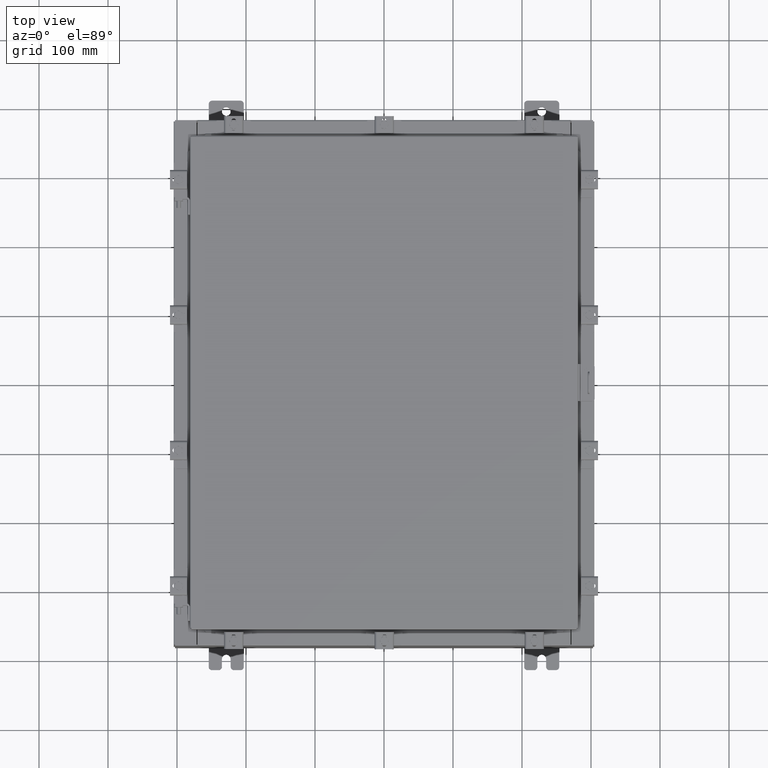
[diagram: clean part render]
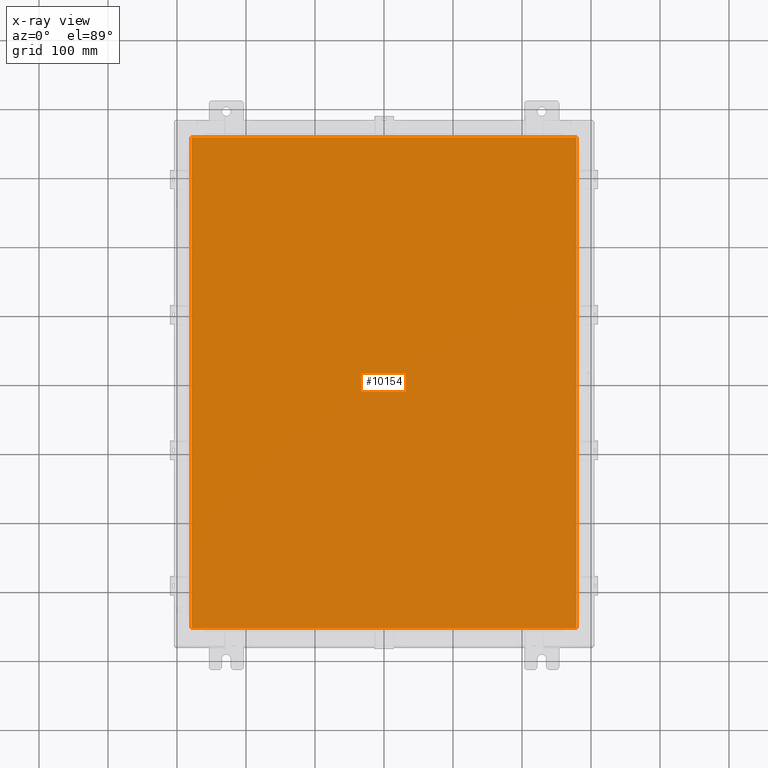
[diagram: x-ray — body ghosted, one internal face saturated and labeled with its STEP entity id]
A machine part, top view, then the same camera in x-ray: the body is ghosted and one INTERNAL B-rep face — a face not visible from any outside direction — is saturated and labeled: STEP entity #10154.
In plain terms, the highlighted planar face has unit normal (0, 0, -1).
Its self-contained STEP definition (entity closure, byte-faithful):
#800 = CARTESIAN_POINT ( 'NONE',  ( -10.99030000000000000, 14.00630000000000100, -0.07470000000000019700 ) ) ;
#907 = VERTEX_POINT ( 'NONE', #15625 ) ;
#2372 = VECTOR ( 'NONE', #11543, 39.37007874015748100 ) ;
#3548 = EDGE_CURVE ( 'NONE', #18880, #907, #15079, .T. ) ;
#3742 = LINE ( 'NONE', #9411, #22220 ) ;
#4670 = CARTESIAN_POINT ( 'NONE',  ( 10.99030000000000000, -14.00629999999999800, -0.07470000000000019700 ) ) ;
#4794 = CARTESIAN_POINT ( 'NONE',  ( -10.99030000000000000, -14.00629999999999600, -0.07470000000000000300 ) ) ;
#5756 = VERTEX_POINT ( 'NONE', #20305 ) ;
#6134 = CARTESIAN_POINT ( 'NONE',  ( 0.0000000000000000000, 0.0000000000000000000, -0.07470000000000000300 ) ) ;
#6164 = LINE ( 'NONE', #4670, #10945 ) ;
#6862 = EDGE_CURVE ( 'NONE', #9668, #5756, #3742, .T. ) ;
#7127 = EDGE_LOOP ( 'NONE', ( #9631, #16444, #20823, #19174 ) ) ;
#8487 = EDGE_CURVE ( 'NONE', #5756, #18880, #16656, .T. ) ;
#9411 = CARTESIAN_POINT ( 'NONE',  ( 10.99030000000000000, 14.00629999999999800, -0.07470000000000019700 ) ) ;
#9631 = ORIENTED_EDGE ( 'NONE', *, *, #11522, .F. ) ;
#9668 = VERTEX_POINT ( 'NONE', #22187 ) ;
#9769 = DIRECTION ( 'NONE',  ( -1.000000000000000000, 0.0000000000000000000, -0.0000000000000000000 ) ) ;
#10154 = ADVANCED_FACE ( 'NONE', ( #20209 ), #18638, .T. ) ;
#10365 = VECTOR ( 'NONE', #19396, 39.37007874015748100 ) ;
#10945 = VECTOR ( 'NONE', #17178, 39.37007874015748100 ) ;
#11210 = DIRECTION ( 'NONE',  ( -1.000000000000000000, -0.0000000000000000000, -0.0000000000000000000 ) ) ;
#11522 = EDGE_CURVE ( 'NONE', #907, #9668, #6164, .T. ) ;
#11543 = DIRECTION ( 'NONE',  ( 0.0000000000000000000, -1.000000000000000000, 0.0000000000000000000 ) ) ;
#15079 = LINE ( 'NONE', #20680, #10365 ) ;
#15625 = CARTESIAN_POINT ( 'NONE',  ( 10.99030000000000000, -14.00629999999999800, -0.07470000000000000300 ) ) ;
#16444 = ORIENTED_EDGE ( 'NONE', *, *, #3548, .F. ) ;
#16656 = LINE ( 'NONE', #800, #2372 ) ;
#17178 = DIRECTION ( 'NONE',  ( 0.0000000000000000000, 1.000000000000000000, 0.0000000000000000000 ) ) ;
#18638 = PLANE ( 'NONE',  #18657 ) ;
#18657 = AXIS2_PLACEMENT_3D ( 'NONE', #6134, #20446, #9769 ) ;
#18880 = VERTEX_POINT ( 'NONE', #4794 ) ;
#19174 = ORIENTED_EDGE ( 'NONE', *, *, #6862, .F. ) ;
#19396 = DIRECTION ( 'NONE',  ( 1.000000000000000000, -0.0000000000000000000, -0.0000000000000000000 ) ) ;
#20209 = FACE_OUTER_BOUND ( 'NONE', #7127, .T. ) ;
#20305 = CARTESIAN_POINT ( 'NONE',  ( -10.99030000000000000, 14.00629999999999800, -0.07470000000000000300 ) ) ;
#20446 = DIRECTION ( 'NONE',  ( 0.0000000000000000000, 0.0000000000000000000, -1.000000000000000000 ) ) ;
#20680 = CARTESIAN_POINT ( 'NONE',  ( -10.99029999999999600, -14.00629999999999800, -0.07470000000000019700 ) ) ;
#20823 = ORIENTED_EDGE ( 'NONE', *, *, #8487, .F. ) ;
#22187 = CARTESIAN_POINT ( 'NONE',  ( 10.99030000000000000, 14.00629999999999800, -0.07470000000000000300 ) ) ;
#22220 = VECTOR ( 'NONE', #11210, 39.37007874015748100 ) ;